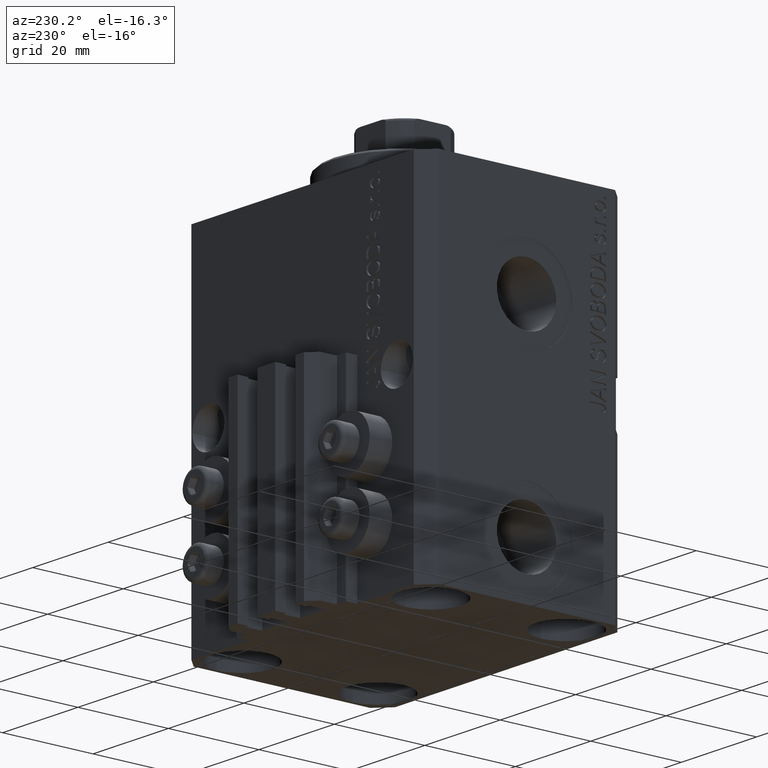
[diagram: clean part render]
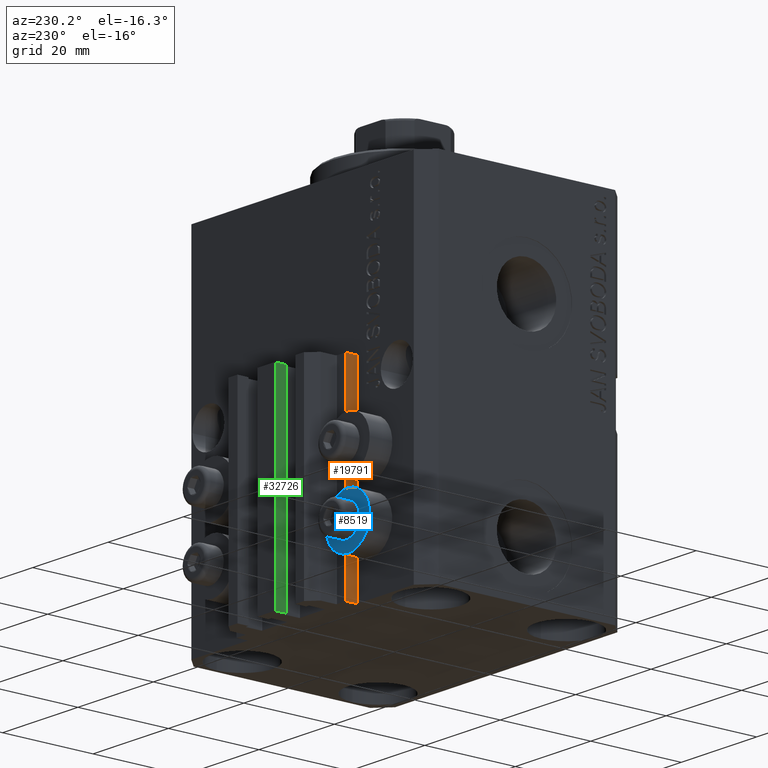
[diagram: same view with three faces highlighted in distinct colors, each labeled with its STEP entity id]
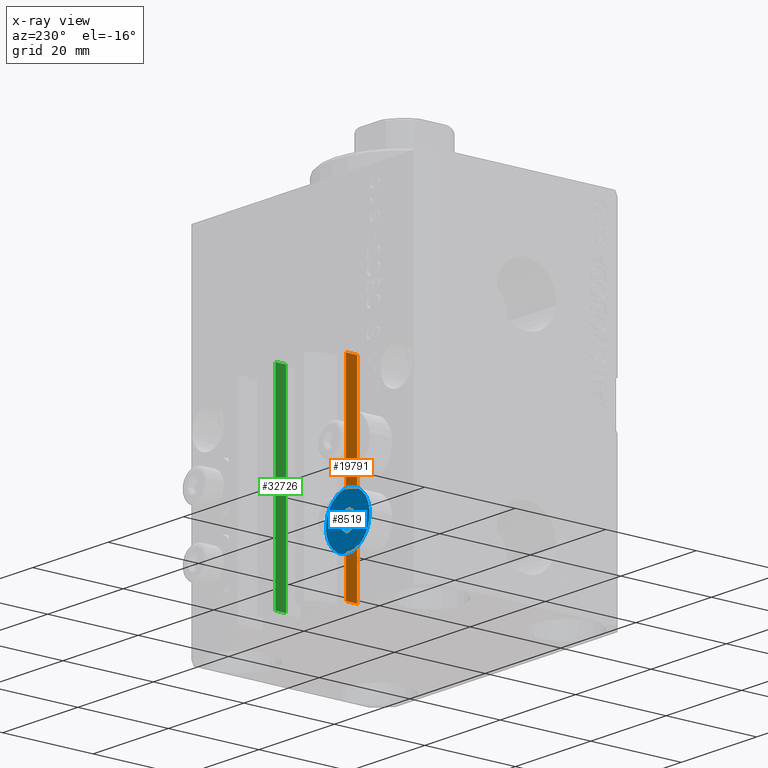
[diagram: x-ray of the same camera — body ghosted, the three highlighted faces saturated]
A machine part, auxiliary view with three faces highlighted in distinct colors.
The next image is the same camera in x-ray (body ghosted, the three faces saturated) — at least one of them is partly hidden behind the body in this view.
Their STEP definitions:

[orange] entity #19791 — the highlighted planar face has unit normal (-1, 0, 0).
#1891 = CARTESIAN_POINT ( 'NONE',  ( -14.50000000000000000, 24.99999999999949196, -77.00000000000000000 ) ) ;
#2314 = AXIS2_PLACEMENT_3D ( 'NONE', #30249, #40750, #37398 ) ;
#3667 = LINE ( 'NONE', #18931, #32191 ) ;
#6862 = DIRECTION ( 'NONE',  ( 0.000000000000000000, 0.000000000000000000, 1.000000000000000000 ) ) ;
#7900 = DIRECTION ( 'NONE',  ( 0.000000000000000000, -1.000000000000000000, 0.000000000000000000 ) ) ;
#9562 = ORIENTED_EDGE ( 'NONE', *, *, #17199, .T. ) ;
#9982 = EDGE_CURVE ( 'NONE', #17811, #36914, #3667, .T. ) ;
#14803 = ORIENTED_EDGE ( 'NONE', *, *, #9982, .T. ) ;
#15230 = VECTOR ( 'NONE', #23856, 1000.000000000000000 ) ;
#15957 = CARTESIAN_POINT ( 'NONE',  ( -14.50000000000000000, 24.99999999999949196, -33.00000000000000000 ) ) ;
#15981 = LINE ( 'NONE', #16451, #15230 ) ;
#16451 = CARTESIAN_POINT ( 'NONE',  ( -14.50000000000000000, 24.99999999999949196, -77.00000000000000000 ) ) ;
#17199 = EDGE_CURVE ( 'NONE', #19503, #17811, #15981, .T. ) ;
#17811 = VERTEX_POINT ( 'NONE', #24209 ) ;
#18468 = DIRECTION ( 'NONE',  ( 0.000000000000000000, 0.000000000000000000, 1.000000000000000000 ) ) ;
#18931 = CARTESIAN_POINT ( 'NONE',  ( -14.50000000000000000, 22.49999999999949907, -77.00000000000000000 ) ) ;
#19006 = EDGE_CURVE ( 'NONE', #19503, #41427, #39554, .T. ) ;
#19128 = LINE ( 'NONE', #44164, #33971 ) ;
#19503 = VERTEX_POINT ( 'NONE', #1891 ) ;
#19791 = ADVANCED_FACE ( 'NONE', ( #36694 ), #45014, .T. ) ;
#23417 = EDGE_LOOP ( 'NONE', ( #45886, #33284, #9562, #14803 ) ) ;
#23856 = DIRECTION ( 'NONE',  ( 0.000000000000000000, -1.000000000000000000, 0.000000000000000000 ) ) ;
#24209 = CARTESIAN_POINT ( 'NONE',  ( -14.50000000000000000, 22.49999999999949907, -77.00000000000000000 ) ) ;
#30154 = CARTESIAN_POINT ( 'NONE',  ( -14.50000000000000000, 22.49999999999949907, -33.00000000000000000 ) ) ;
#30249 = CARTESIAN_POINT ( 'NONE',  ( -14.50000000000000000, 24.99999999999949196, -77.00000000000000000 ) ) ;
#31242 = VECTOR ( 'NONE', #6862, 1000.000000000000000 ) ;
#32191 = VECTOR ( 'NONE', #18468, 1000.000000000000000 ) ;
#33284 = ORIENTED_EDGE ( 'NONE', *, *, #19006, .F. ) ;
#33971 = VECTOR ( 'NONE', #7900, 1000.000000000000000 ) ;
#36694 = FACE_OUTER_BOUND ( 'NONE', #23417, .T. ) ;
#36914 = VERTEX_POINT ( 'NONE', #30154 ) ;
#37398 = DIRECTION ( 'NONE',  ( 0.000000000000000000, 0.000000000000000000, 1.000000000000000000 ) ) ;
#39554 = LINE ( 'NONE', #47161, #31242 ) ;
#40750 = DIRECTION ( 'NONE',  ( -1.000000000000000000, 0.000000000000000000, 0.000000000000000000 ) ) ;
#41427 = VERTEX_POINT ( 'NONE', #15957 ) ;
#44089 = EDGE_CURVE ( 'NONE', #41427, #36914, #19128, .T. ) ;
#44164 = CARTESIAN_POINT ( 'NONE',  ( -14.50000000000000000, 24.99999999999949196, -33.00000000000000000 ) ) ;
#45014 = PLANE ( 'NONE',  #2314 ) ;
#45886 = ORIENTED_EDGE ( 'NONE', *, *, #44089, .F. ) ;
#47161 = CARTESIAN_POINT ( 'NONE',  ( -14.50000000000000000, 24.99999999999949196, -77.00000000000000000 ) ) ;

[blue] entity #8519 — the highlighted planar face has unit normal (0, -1, 0).
#1110 = CARTESIAN_POINT ( 'NONE',  ( -12.20000000000000284, 27.49999999996051514, -64.00000000000000000 ) ) ;
#2180 = EDGE_LOOP ( 'NONE', ( #27354, #21805 ) ) ;
#2332 = VERTEX_POINT ( 'NONE', #4258 ) ;
#4258 = CARTESIAN_POINT ( 'NONE',  ( -18.00000000000000355, 27.49999999996051514, -62.00000000000000000 ) ) ;
#6601 = EDGE_CURVE ( 'NONE', #10136, #2332, #19122, .T. ) ;
#8312 = CARTESIAN_POINT ( 'NONE',  ( -18.00000000000000355, 27.49999999996051514, -64.00000000000000000 ) ) ;
#8519 = ADVANCED_FACE ( 'NONE', ( #19962, #33804 ), #45468, .F. ) ;
#10136 = VERTEX_POINT ( 'NONE', #27907 ) ;
#12499 = CIRCLE ( 'NONE', #39183, 2.000000000000001776 ) ;
#12634 = CARTESIAN_POINT ( 'NONE',  ( -18.00000000000000355, 27.49999999996051514, -64.00000000000000000 ) ) ;
#13165 = CIRCLE ( 'NONE', #33009, 5.799999999999999822 ) ;
#14414 = ORIENTED_EDGE ( 'NONE', *, *, #6601, .T. ) ;
#14932 = EDGE_CURVE ( 'NONE', #31406, #32934, #18204, .T. ) ;
#15184 = ORIENTED_EDGE ( 'NONE', *, *, #40481, .T. ) ;
#15668 = DIRECTION ( 'NONE',  ( 0.000000000000000000, -1.000000000000000000, 0.000000000000000000 ) ) ;
#15718 = DIRECTION ( 'NONE',  ( 0.000000000000000000, 0.000000000000000000, -1.000000000000000000 ) ) ;
#18204 = CIRCLE ( 'NONE', #46372, 5.799999999999999822 ) ;
#19122 = CIRCLE ( 'NONE', #45755, 2.000000000000001776 ) ;
#19962 = FACE_BOUND ( 'NONE', #31922, .T. ) ;
#20253 = DIRECTION ( 'NONE',  ( 0.000000000000000000, 0.000000000000000000, -1.000000000000000000 ) ) ;
#21805 = ORIENTED_EDGE ( 'NONE', *, *, #26063, .F. ) ;
#22891 = DIRECTION ( 'NONE',  ( -0.000000000000000000, -1.000000000000000000, -0.000000000000000000 ) ) ;
#24749 = DIRECTION ( 'NONE',  ( -0.000000000000000000, -1.000000000000000000, -0.000000000000000000 ) ) ;
#24883 = DIRECTION ( 'NONE',  ( 0.000000000000000000, 0.000000000000000000, -1.000000000000000000 ) ) ;
#26063 = EDGE_CURVE ( 'NONE', #32934, #31406, #13165, .T. ) ;
#27354 = ORIENTED_EDGE ( 'NONE', *, *, #14932, .F. ) ;
#27907 = CARTESIAN_POINT ( 'NONE',  ( -18.00000000000000355, 27.49999999996051514, -66.00000000000000000 ) ) ;
#28803 = DIRECTION ( 'NONE',  ( 0.000000000000000000, 0.000000000000000000, -1.000000000000000000 ) ) ;
#30234 = DIRECTION ( 'NONE',  ( 0.000000000000000000, 0.000000000000000000, 1.000000000000000000 ) ) ;
#30486 = CARTESIAN_POINT ( 'NONE',  ( -18.00000000000000355, 27.49999999996051514, -58.20000000000000284 ) ) ;
#31406 = VERTEX_POINT ( 'NONE', #44955 ) ;
#31922 = EDGE_LOOP ( 'NONE', ( #15184, #14414 ) ) ;
#32028 = CARTESIAN_POINT ( 'NONE',  ( -18.00000000000000355, 27.49999999996051514, -64.00000000000000000 ) ) ;
#32934 = VERTEX_POINT ( 'NONE', #30486 ) ;
#33009 = AXIS2_PLACEMENT_3D ( 'NONE', #32028, #46326, #24883 ) ;
#33804 = FACE_OUTER_BOUND ( 'NONE', #2180, .T. ) ;
#38839 = DIRECTION ( 'NONE',  ( -0.000000000000000000, -1.000000000000000000, -0.000000000000000000 ) ) ;
#39183 = AXIS2_PLACEMENT_3D ( 'NONE', #8312, #22891, #15718 ) ;
#39311 = CARTESIAN_POINT ( 'NONE',  ( -18.00000000000000355, 27.49999999996051514, -64.00000000000000000 ) ) ;
#40481 = EDGE_CURVE ( 'NONE', #2332, #10136, #12499, .T. ) ;
#42023 = AXIS2_PLACEMENT_3D ( 'NONE', #1110, #15668, #30234 ) ;
#44955 = CARTESIAN_POINT ( 'NONE',  ( -18.00000000000000355, 27.49999999996051514, -69.79999999999999716 ) ) ;
#45468 = PLANE ( 'NONE',  #42023 ) ;
#45755 = AXIS2_PLACEMENT_3D ( 'NONE', #39311, #38839, #20253 ) ;
#46326 = DIRECTION ( 'NONE',  ( -0.000000000000000000, -1.000000000000000000, -0.000000000000000000 ) ) ;
#46372 = AXIS2_PLACEMENT_3D ( 'NONE', #12634, #24749, #28803 ) ;

[green] entity #32726 — the highlighted planar face has unit normal (-1, 0, 0).
#1351 = EDGE_CURVE ( 'NONE', #19548, #36908, #13196, .T. ) ;
#2420 = FACE_OUTER_BOUND ( 'NONE', #23875, .T. ) ;
#8623 = DIRECTION ( 'NONE',  ( 0.000000000000000000, 0.000000000000000000, 1.000000000000000000 ) ) ;
#10928 = CARTESIAN_POINT ( 'NONE',  ( -2.350000000000003197, 30.49999999999949907, -77.00000000000000000 ) ) ;
#12209 = PLANE ( 'NONE',  #33884 ) ;
#12466 = CARTESIAN_POINT ( 'NONE',  ( -2.350000000000003197, 28.09999999999950049, -33.00000000000000000 ) ) ;
#13196 = LINE ( 'NONE', #16553, #31884 ) ;
#14980 = DIRECTION ( 'NONE',  ( 0.000000000000000000, -1.000000000000000000, 0.000000000000000000 ) ) ;
#15825 = DIRECTION ( 'NONE',  ( 0.000000000000000000, 0.000000000000000000, 1.000000000000000000 ) ) ;
#16553 = CARTESIAN_POINT ( 'NONE',  ( -2.350000000000003197, 28.09999999999950049, -77.00000000000000000 ) ) ;
#18360 = ORIENTED_EDGE ( 'NONE', *, *, #1351, .T. ) ;
#18409 = EDGE_CURVE ( 'NONE', #39618, #36908, #28802, .T. ) ;
#19183 = CARTESIAN_POINT ( 'NONE',  ( -2.350000000000003197, 30.49999999999949907, -77.00000000000000000 ) ) ;
#19548 = VERTEX_POINT ( 'NONE', #42433 ) ;
#19610 = CARTESIAN_POINT ( 'NONE',  ( -2.350000000000003197, 30.49999999999949907, -33.00000000000000000 ) ) ;
#20094 = DIRECTION ( 'NONE',  ( -1.000000000000000000, 0.000000000000000000, 0.000000000000000000 ) ) ;
#20706 = CARTESIAN_POINT ( 'NONE',  ( -2.350000000000003197, 30.49999999999949907, -33.00000000000000000 ) ) ;
#22761 = LINE ( 'NONE', #19183, #36033 ) ;
#23575 = ORIENTED_EDGE ( 'NONE', *, *, #25242, .F. ) ;
#23875 = EDGE_LOOP ( 'NONE', ( #42978, #23575, #37156, #18360 ) ) ;
#25242 = EDGE_CURVE ( 'NONE', #46587, #39618, #22761, .T. ) ;
#27774 = DIRECTION ( 'NONE',  ( 0.000000000000000000, 0.000000000000000000, 1.000000000000000000 ) ) ;
#28802 = LINE ( 'NONE', #20706, #33554 ) ;
#29550 = LINE ( 'NONE', #10928, #33814 ) ;
#30883 = EDGE_CURVE ( 'NONE', #46587, #19548, #29550, .T. ) ;
#31884 = VECTOR ( 'NONE', #27774, 1000.000000000000000 ) ;
#32726 = ADVANCED_FACE ( 'NONE', ( #2420 ), #12209, .T. ) ;
#33554 = VECTOR ( 'NONE', #35004, 1000.000000000000000 ) ;
#33814 = VECTOR ( 'NONE', #14980, 1000.000000000000000 ) ;
#33884 = AXIS2_PLACEMENT_3D ( 'NONE', #41792, #20094, #8623 ) ;
#35004 = DIRECTION ( 'NONE',  ( 0.000000000000000000, -1.000000000000000000, 0.000000000000000000 ) ) ;
#36033 = VECTOR ( 'NONE', #15825, 1000.000000000000000 ) ;
#36908 = VERTEX_POINT ( 'NONE', #12466 ) ;
#37156 = ORIENTED_EDGE ( 'NONE', *, *, #30883, .T. ) ;
#39618 = VERTEX_POINT ( 'NONE', #19610 ) ;
#40182 = CARTESIAN_POINT ( 'NONE',  ( -2.350000000000003197, 30.49999999999949907, -77.00000000000000000 ) ) ;
#41792 = CARTESIAN_POINT ( 'NONE',  ( -2.350000000000003197, 30.49999999999949907, -77.00000000000000000 ) ) ;
#42433 = CARTESIAN_POINT ( 'NONE',  ( -2.350000000000003197, 28.09999999999950049, -77.00000000000000000 ) ) ;
#42978 = ORIENTED_EDGE ( 'NONE', *, *, #18409, .F. ) ;
#46587 = VERTEX_POINT ( 'NONE', #40182 ) ;